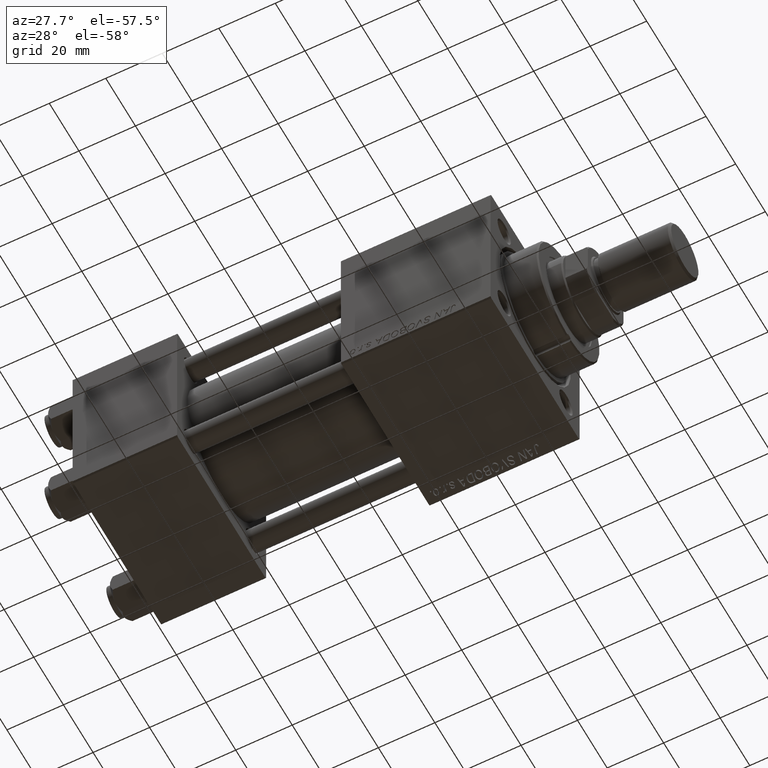
[diagram: clean part render]
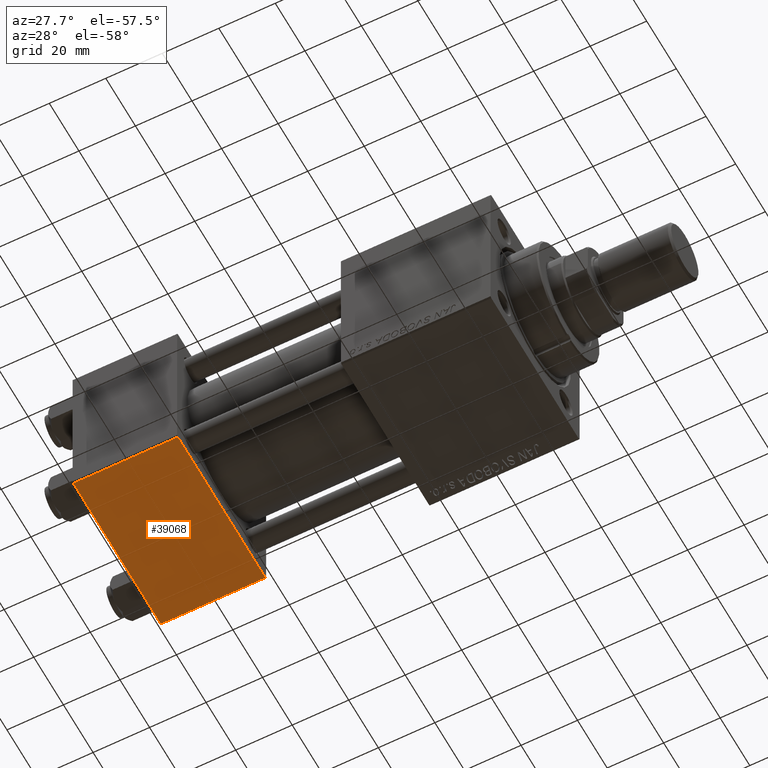
[diagram: same view with one face highlighted and labeled with its STEP entity id]
A machine part, auxiliary view. The second image highlights one B-rep face of the part: STEP entity #39068.
In plain terms, the highlighted planar face has unit normal (0, 0, -1).
Its self-contained STEP definition (entity closure, byte-faithful):
#261 = VERTEX_POINT ( 'NONE', #14910 ) ;
#1063 = CARTESIAN_POINT ( 'NONE',  ( 37.00000000000000000, 29.99999999999999289, -30.00000000000000000 ) ) ;
#1169 = ORIENTED_EDGE ( 'NONE', *, *, #20406, .T. ) ;
#1540 = CARTESIAN_POINT ( 'NONE',  ( 0.000000000000000000, 29.99999999999999289, -30.00000000000000000 ) ) ;
#1605 = ORIENTED_EDGE ( 'NONE', *, *, #10127, .F. ) ;
#2786 = DIRECTION ( 'NONE',  ( -1.000000000000000000, 0.000000000000000000, 0.000000000000000000 ) ) ;
#4409 = AXIS2_PLACEMENT_3D ( 'NONE', #1063, #12899, #29102 ) ;
#9844 = CARTESIAN_POINT ( 'NONE',  ( 37.00000000000000000, 29.49999999999997868, -30.00000000000000000 ) ) ;
#10127 = EDGE_CURVE ( 'NONE', #37043, #261, #16494, .T. ) ;
#12777 = VERTEX_POINT ( 'NONE', #29311 ) ;
#12899 = DIRECTION ( 'NONE',  ( 0.000000000000000000, 1.156482317317871725E-16, -1.000000000000000000 ) ) ;
#13423 = CARTESIAN_POINT ( 'NONE',  ( 37.00000000000000000, -29.50000000000000000, -30.00000000000000711 ) ) ;
#13475 = VECTOR ( 'NONE', #41502, 1000.000000000000000 ) ;
#14609 = CARTESIAN_POINT ( 'NONE',  ( 0.000000000000000000, -29.50000000000001066, -30.00000000000000711 ) ) ;
#14910 = CARTESIAN_POINT ( 'NONE',  ( 0.000000000000000000, -29.50000000000000000, -30.00000000000000711 ) ) ;
#16494 = LINE ( 'NONE', #1540, #41117 ) ;
#19983 = CARTESIAN_POINT ( 'NONE',  ( 37.00000000000000000, 29.99999999999999289, -30.00000000000000000 ) ) ;
#20406 = EDGE_CURVE ( 'NONE', #26677, #261, #22348, .T. ) ;
#22348 = LINE ( 'NONE', #14609, #42980 ) ;
#26668 = CARTESIAN_POINT ( 'NONE',  ( 0.000000000000000000, 29.49999999999997868, -30.00000000000000000 ) ) ;
#26677 = VERTEX_POINT ( 'NONE', #13423 ) ;
#29102 = DIRECTION ( 'NONE',  ( 0.000000000000000000, 1.000000000000000000, 1.156482317317871725E-16 ) ) ;
#29311 = CARTESIAN_POINT ( 'NONE',  ( 37.00000000000000000, 29.49999999999997868, -30.00000000000000000 ) ) ;
#30881 = EDGE_CURVE ( 'NONE', #12777, #26677, #32095, .T. ) ;
#32095 = LINE ( 'NONE', #19983, #47742 ) ;
#33289 = LINE ( 'NONE', #9844, #13475 ) ;
#36336 = PLANE ( 'NONE',  #4409 ) ;
#37043 = VERTEX_POINT ( 'NONE', #26668 ) ;
#37850 = EDGE_LOOP ( 'NONE', ( #1605, #39811, #44695, #1169 ) ) ;
#38837 = EDGE_CURVE ( 'NONE', #37043, #12777, #33289, .T. ) ;
#39068 = ADVANCED_FACE ( 'NONE', ( #40925 ), #36336, .T. ) ;
#39811 = ORIENTED_EDGE ( 'NONE', *, *, #38837, .T. ) ;
#40904 = DIRECTION ( 'NONE',  ( 0.000000000000000000, -1.000000000000000000, -1.156482317317871725E-16 ) ) ;
#40925 = FACE_OUTER_BOUND ( 'NONE', #37850, .T. ) ;
#41117 = VECTOR ( 'NONE', #40904, 1000.000000000000000 ) ;
#41502 = DIRECTION ( 'NONE',  ( 1.000000000000000000, 0.000000000000000000, 0.000000000000000000 ) ) ;
#42980 = VECTOR ( 'NONE', #2786, 1000.000000000000000 ) ;
#44695 = ORIENTED_EDGE ( 'NONE', *, *, #30881, .T. ) ;
#47742 = VECTOR ( 'NONE', #47794, 1000.000000000000000 ) ;
#47794 = DIRECTION ( 'NONE',  ( 0.000000000000000000, -1.000000000000000000, -1.156482317317871725E-16 ) ) ;